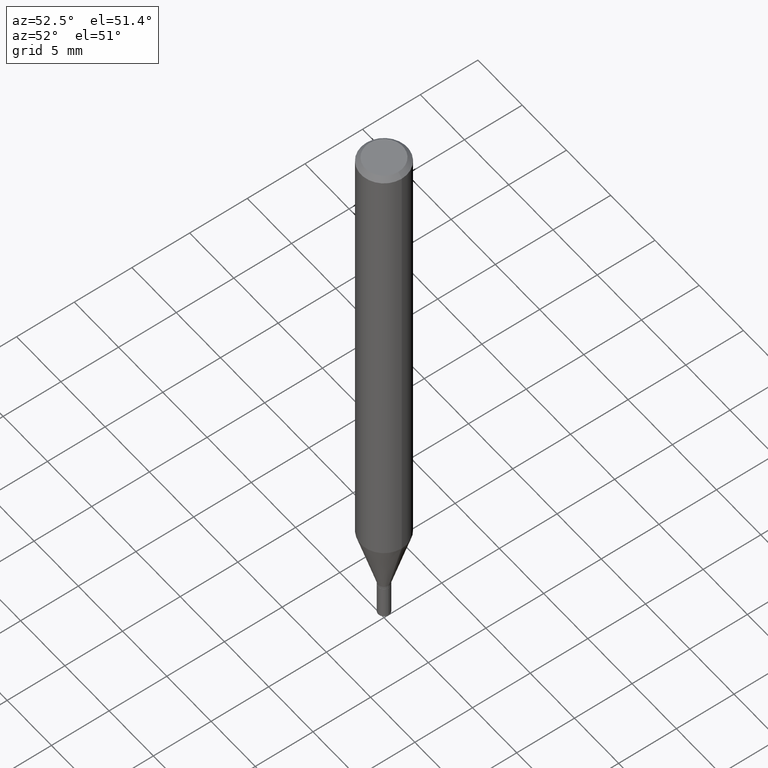
[diagram: clean part render]
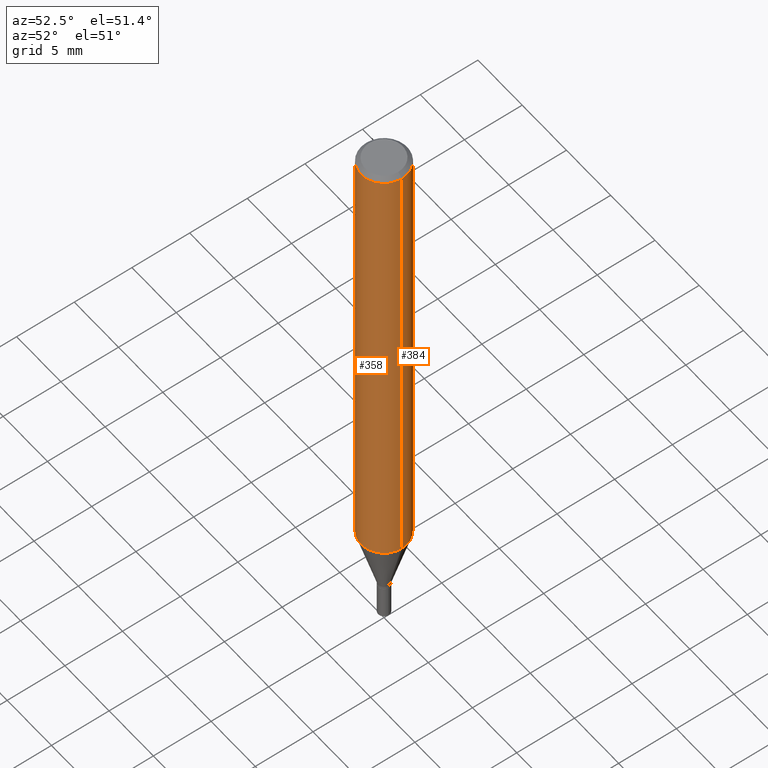
[diagram: same view with one multi-face feature highlighted, each face labeled with its STEP entity id]
A machine part, auxiliary view. The highlighted faces form ONE feature: a constant-radius fillet chain: 2 tangent blend faces with common blend radius 2.0002 mm. The faces share edges in the B-rep.
Their STEP definitions:
[1] entity #384 (Cylinder):
#4 = VERTEX_POINT ( 'NONE', #363 ) ;
#22 = VECTOR ( 'NONE', #409, 39.37007874015748143 ) ;
#48 = DIRECTION ( 'NONE',  ( 1.000000000000000000, -6.982962677686261977E-15, 0.000000000000000000 ) ) ;
#51 = EDGE_CURVE ( 'NONE', #321, #284, #199, .T. ) ;
#68 = CARTESIAN_POINT ( 'NONE',  ( 3.668203209277705088E-31, -5.237222008264718399E-17, -0.01499999999999999944 ) ) ;
#88 = CYLINDRICAL_SURFACE ( 'NONE', #210, 0.07875000000000000056 ) ;
#95 = FACE_OUTER_BOUND ( 'NONE', #254, .T. ) ;
#105 = ORIENTED_EDGE ( 'NONE', *, *, #455, .F. ) ;
#114 = VECTOR ( 'NONE', #201, 39.37007874015748143 ) ;
#117 = CARTESIAN_POINT ( 'NONE',  ( 0.07875000000000000056, -6.022805309504406221E-16, -0.01499999999999999944 ) ) ;
#130 = ORIENTED_EDGE ( 'NONE', *, *, #295, .T. ) ;
#152 = CARTESIAN_POINT ( 'NONE',  ( 0.07875000000000000056, -5.499083108677934443E-16, 3.839989210939299016E-30 ) ) ;
#154 = CIRCLE ( 'NONE', #265, 0.07875000000000000056 ) ;
#175 = DIRECTION ( 'NONE',  ( 1.000000000000000000, -6.982962677686265922E-15, 4.876176775795935232E-29 ) ) ;
#184 = CARTESIAN_POINT ( 'NONE',  ( -0.07875000000000000056, 5.595524044110789003E-16, -3.873661383575737792E-30 ) ) ;
#186 = EDGE_CURVE ( 'NONE', #4, #297, #245, .T. ) ;
#196 = CARTESIAN_POINT ( 'NONE',  ( -0.07875000000000000056, -2.294947268424778136E-15, -0.01499999999999999944 ) ) ;
#199 = LINE ( 'NONE', #152, #114 ) ;
#201 = DIRECTION ( 'NONE',  ( -2.445468806185136877E-29, 3.491481338843145188E-15, 1.000000000000000000 ) ) ;
#210 = AXIS2_PLACEMENT_3D ( 'NONE', #382, #248, #175 ) ;
#245 = LINE ( 'NONE', #184, #22 ) ;
#248 = DIRECTION ( 'NONE',  ( -2.445468806185136597E-29, 3.491481338843145583E-15, 1.000000000000000000 ) ) ;
#251 = ORIENTED_EDGE ( 'NONE', *, *, #51, .F. ) ;
#254 = EDGE_LOOP ( 'NONE', ( #130, #454, #105, #251 ) ) ;
#265 = AXIS2_PLACEMENT_3D ( 'NONE', #402, #267, #48 ) ;
#267 = DIRECTION ( 'NONE',  ( -2.445468806185136597E-29, 3.491481338843145583E-15, 1.000000000000000000 ) ) ;
#284 = VERTEX_POINT ( 'NONE', #117 ) ;
#295 = EDGE_CURVE ( 'NONE', #321, #4, #154, .T. ) ;
#297 = VERTEX_POINT ( 'NONE', #196 ) ;
#314 = AXIS2_PLACEMENT_3D ( 'NONE', #68, #397, #366 ) ;
#321 = VERTEX_POINT ( 'NONE', #356 ) ;
#344 = CIRCLE ( 'NONE', #314, 0.07875000000000000056 ) ;
#356 = CARTESIAN_POINT ( 'NONE',  ( 0.07874999999999997280, -6.206535436456859747E-15, -1.620122399813058056 ) ) ;
#363 = CARTESIAN_POINT ( 'NONE',  ( -0.07874999999999997280, -5.097074721177987599E-15, -1.620122399813058056 ) ) ;
#366 = DIRECTION ( 'NONE',  ( 1.000000000000000000, -6.982962677686265922E-15, 0.000000000000000000 ) ) ;
#382 = CARTESIAN_POINT ( 'NONE',  ( 0.000000000000000000, 0.000000000000000000, 0.000000000000000000 ) ) ;
#384 = ADVANCED_FACE ( 'NONE', ( #95 ), #88, .T. ) ;
#397 = DIRECTION ( 'NONE',  ( -2.445468806185136597E-29, 3.491481338843145583E-15, 1.000000000000000000 ) ) ;
#402 = CARTESIAN_POINT ( 'NONE',  ( 3.961958790944637830E-29, -5.656627125589065612E-15, -1.620122399813058056 ) ) ;
#409 = DIRECTION ( 'NONE',  ( -2.445468806185136877E-29, 3.491481338843145188E-15, 1.000000000000000000 ) ) ;
#454 = ORIENTED_EDGE ( 'NONE', *, *, #186, .T. ) ;
#455 = EDGE_CURVE ( 'NONE', #284, #297, #344, .T. ) ;
[2] entity #358 (Cylinder):
#4 = VERTEX_POINT ( 'NONE', #363 ) ;
#12 = EDGE_CURVE ( 'NONE', #297, #284, #59, .T. ) ;
#22 = VECTOR ( 'NONE', #409, 39.37007874015748143 ) ;
#51 = EDGE_CURVE ( 'NONE', #321, #284, #199, .T. ) ;
#59 = CIRCLE ( 'NONE', #337, 0.07875000000000000056 ) ;
#86 = CARTESIAN_POINT ( 'NONE',  ( 0.000000000000000000, 0.000000000000000000, 0.000000000000000000 ) ) ;
#94 = ORIENTED_EDGE ( 'NONE', *, *, #12, .F. ) ;
#108 = AXIS2_PLACEMENT_3D ( 'NONE', #279, #460, #316 ) ;
#114 = VECTOR ( 'NONE', #201, 39.37007874015748143 ) ;
#117 = CARTESIAN_POINT ( 'NONE',  ( 0.07875000000000000056, -6.022805309504406221E-16, -0.01499999999999999944 ) ) ;
#146 = ORIENTED_EDGE ( 'NONE', *, *, #368, .T. ) ;
#152 = CARTESIAN_POINT ( 'NONE',  ( 0.07875000000000000056, -5.499083108677934443E-16, 3.839989210939299016E-30 ) ) ;
#166 = DIRECTION ( 'NONE',  ( 1.000000000000000000, -6.982962677686265922E-15, 4.876176775795935232E-29 ) ) ;
#168 = CYLINDRICAL_SURFACE ( 'NONE', #170, 0.07875000000000000056 ) ;
#170 = AXIS2_PLACEMENT_3D ( 'NONE', #86, #277, #166 ) ;
#184 = CARTESIAN_POINT ( 'NONE',  ( -0.07875000000000000056, 5.595524044110789003E-16, -3.873661383575737792E-30 ) ) ;
#186 = EDGE_CURVE ( 'NONE', #4, #297, #245, .T. ) ;
#196 = CARTESIAN_POINT ( 'NONE',  ( -0.07875000000000000056, -2.294947268424778136E-15, -0.01499999999999999944 ) ) ;
#199 = LINE ( 'NONE', #152, #114 ) ;
#201 = DIRECTION ( 'NONE',  ( -2.445468806185136877E-29, 3.491481338843145188E-15, 1.000000000000000000 ) ) ;
#245 = LINE ( 'NONE', #184, #22 ) ;
#257 = CIRCLE ( 'NONE', #108, 0.07875000000000000056 ) ;
#261 = CARTESIAN_POINT ( 'NONE',  ( 3.668203209277705088E-31, -5.237222008264718399E-17, -0.01499999999999999944 ) ) ;
#277 = DIRECTION ( 'NONE',  ( -2.445468806185136597E-29, 3.491481338843145583E-15, 1.000000000000000000 ) ) ;
#279 = CARTESIAN_POINT ( 'NONE',  ( 3.961958790944637830E-29, -5.656627125589065612E-15, -1.620122399813058056 ) ) ;
#284 = VERTEX_POINT ( 'NONE', #117 ) ;
#288 = DIRECTION ( 'NONE',  ( -2.445468806185136597E-29, 3.491481338843145583E-15, 1.000000000000000000 ) ) ;
#291 = ORIENTED_EDGE ( 'NONE', *, *, #186, .F. ) ;
#297 = VERTEX_POINT ( 'NONE', #196 ) ;
#316 = DIRECTION ( 'NONE',  ( 1.000000000000000000, -6.982962677686261977E-15, 0.000000000000000000 ) ) ;
#321 = VERTEX_POINT ( 'NONE', #356 ) ;
#337 = AXIS2_PLACEMENT_3D ( 'NONE', #261, #288, #428 ) ;
#356 = CARTESIAN_POINT ( 'NONE',  ( 0.07874999999999997280, -6.206535436456859747E-15, -1.620122399813058056 ) ) ;
#358 = ADVANCED_FACE ( 'NONE', ( #380 ), #168, .T. ) ;
#363 = CARTESIAN_POINT ( 'NONE',  ( -0.07874999999999997280, -5.097074721177987599E-15, -1.620122399813058056 ) ) ;
#368 = EDGE_CURVE ( 'NONE', #4, #321, #257, .T. ) ;
#380 = FACE_OUTER_BOUND ( 'NONE', #461, .T. ) ;
#381 = ORIENTED_EDGE ( 'NONE', *, *, #51, .T. ) ;
#409 = DIRECTION ( 'NONE',  ( -2.445468806185136877E-29, 3.491481338843145188E-15, 1.000000000000000000 ) ) ;
#428 = DIRECTION ( 'NONE',  ( 1.000000000000000000, -6.982962677686265922E-15, 0.000000000000000000 ) ) ;
#460 = DIRECTION ( 'NONE',  ( -2.445468806185136597E-29, 3.491481338843145583E-15, 1.000000000000000000 ) ) ;
#461 = EDGE_LOOP ( 'NONE', ( #291, #146, #381, #94 ) ) ;